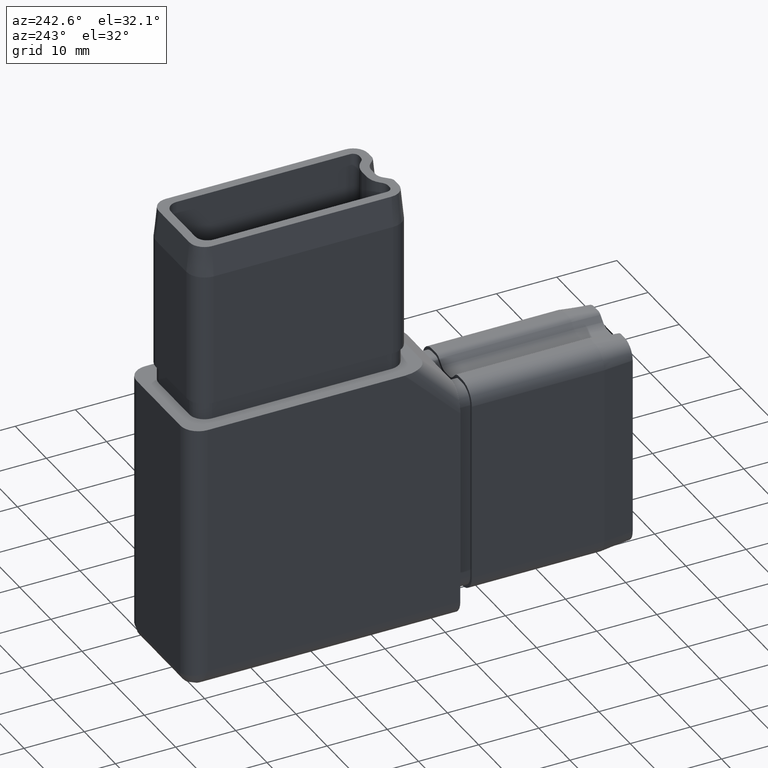
[diagram: clean part render]
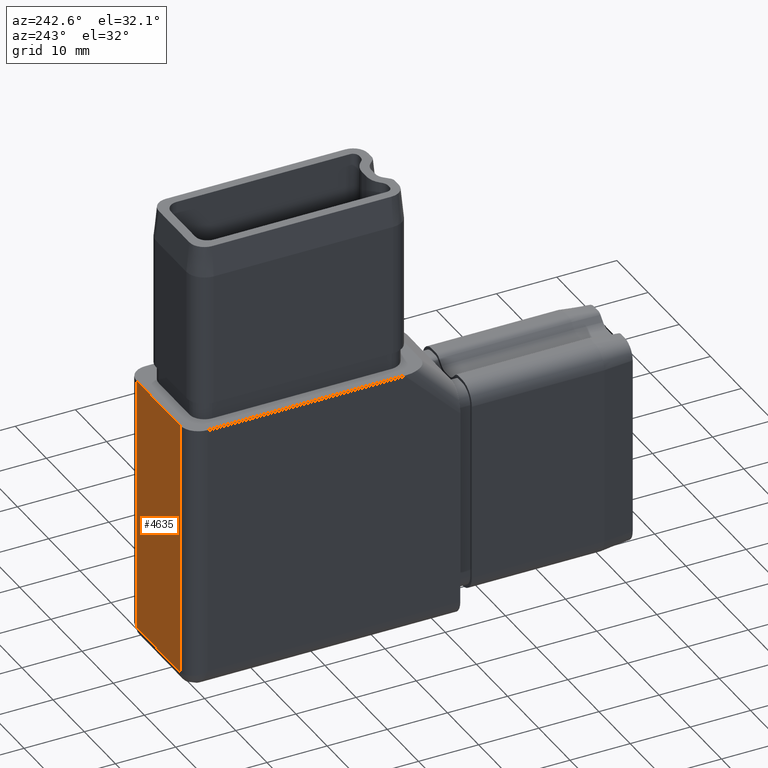
[diagram: same view with one face highlighted and labeled with its STEP entity id]
A machine part, auxiliary view. The second image highlights one B-rep face of the part: STEP entity #4635.
In plain terms, the highlighted planar face has unit normal (0, -1, 0).
Its self-contained STEP definition (entity closure, byte-faithful):
#542 = FACE_OUTER_BOUND ( 'NONE', #5020, .T. ) ;
#757 = ORIENTED_EDGE ( 'NONE', *, *, #24531, .T. ) ;
#1856 = CARTESIAN_POINT ( 'NONE',  ( -7.000000000000000900, 22.50000000000000000, -20.49999999999999600 ) ) ;
#2271 = LINE ( 'NONE', #24787, #3499 ) ;
#3499 = VECTOR ( 'NONE', #9168, 1000.000000000000000 ) ;
#4114 = VECTOR ( 'NONE', #23576, 1000.000000000000000 ) ;
#4635 = ADVANCED_FACE ( 'NONE', ( #542 ), #6465, .F. ) ;
#5020 = EDGE_LOOP ( 'NONE', ( #14726, #9386, #757, #20237 ) ) ;
#5100 = DIRECTION ( 'NONE',  ( 0.0000000000000000000, -1.000000000000000000, 0.0000000000000000000 ) ) ;
#5214 = VERTEX_POINT ( 'NONE', #1856 ) ;
#5841 = CARTESIAN_POINT ( 'NONE',  ( 10.00000000000000000, 22.50000000000000000, -20.49999999999999600 ) ) ;
#6465 = PLANE ( 'NONE',  #12062 ) ;
#6856 = LINE ( 'NONE', #21432, #4114 ) ;
#9168 = DIRECTION ( 'NONE',  ( -1.000000000000000000, -0.0000000000000000000, -0.0000000000000000000 ) ) ;
#9386 = ORIENTED_EDGE ( 'NONE', *, *, #18260, .T. ) ;
#9767 = VERTEX_POINT ( 'NONE', #19507 ) ;
#10404 = DIRECTION ( 'NONE',  ( 0.0000000000000000000, -0.0000000000000000000, -1.000000000000000000 ) ) ;
#12062 = AXIS2_PLACEMENT_3D ( 'NONE', #18694, #5100, #10404 ) ;
#12848 = VERTEX_POINT ( 'NONE', #18884 ) ;
#13256 = LINE ( 'NONE', #5841, #19674 ) ;
#13454 = DIRECTION ( 'NONE',  ( -1.000000000000000000, 0.0000000000000000000, 0.0000000000000000000 ) ) ;
#13793 = EDGE_CURVE ( 'NONE', #16981, #12848, #17062, .T. ) ;
#14726 = ORIENTED_EDGE ( 'NONE', *, *, #13793, .T. ) ;
#15378 = CARTESIAN_POINT ( 'NONE',  ( 7.000000000000000000, 22.50000000000000000, -22.50000000000000000 ) ) ;
#16458 = VECTOR ( 'NONE', #17505, 1000.000000000000000 ) ;
#16981 = VERTEX_POINT ( 'NONE', #24067 ) ;
#17062 = LINE ( 'NONE', #15378, #16458 ) ;
#17488 = EDGE_CURVE ( 'NONE', #16981, #9767, #2271, .T. ) ;
#17505 = DIRECTION ( 'NONE',  ( -0.0000000000000000000, -0.0000000000000000000, -1.000000000000000000 ) ) ;
#18260 = EDGE_CURVE ( 'NONE', #12848, #5214, #13256, .T. ) ;
#18694 = CARTESIAN_POINT ( 'NONE',  ( 10.00000000000000000, 22.50000000000000000, 22.50000000000000000 ) ) ;
#18884 = CARTESIAN_POINT ( 'NONE',  ( 7.000000000000000000, 22.50000000000000000, -20.49999999999999600 ) ) ;
#19507 = CARTESIAN_POINT ( 'NONE',  ( -7.000000000000000900, 22.50000000000000000, 22.50000000000000000 ) ) ;
#19674 = VECTOR ( 'NONE', #13454, 1000.000000000000000 ) ;
#20237 = ORIENTED_EDGE ( 'NONE', *, *, #17488, .F. ) ;
#21432 = CARTESIAN_POINT ( 'NONE',  ( -7.000000000000000900, 22.50000000000000000, 22.50000000000000000 ) ) ;
#23576 = DIRECTION ( 'NONE',  ( -0.0000000000000000000, 0.0000000000000000000, 1.000000000000000000 ) ) ;
#24067 = CARTESIAN_POINT ( 'NONE',  ( 7.000000000000000000, 22.50000000000000000, 22.50000000000000000 ) ) ;
#24531 = EDGE_CURVE ( 'NONE', #5214, #9767, #6856, .T. ) ;
#24787 = CARTESIAN_POINT ( 'NONE',  ( 10.00000000000000000, 22.50000000000000000, 22.50000000000000000 ) ) ;